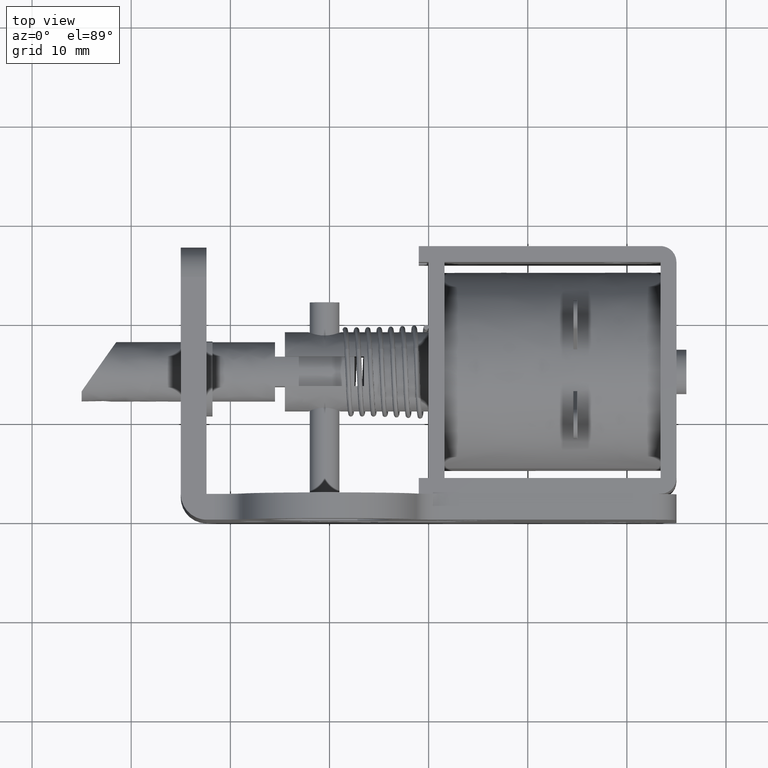
[diagram: clean part render]
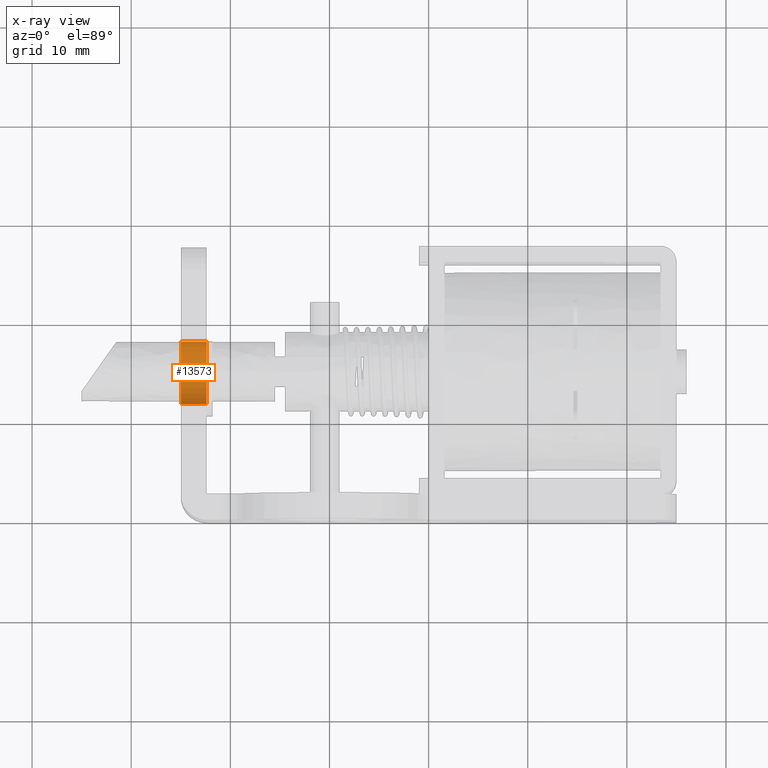
[diagram: x-ray — body ghosted, one internal face saturated and labeled with its STEP entity id]
A machine part, top view, then the same camera in x-ray: the body is ghosted and one INTERNAL B-rep face — a face not visible from any outside direction — is saturated and labeled: STEP entity #13573.
In plain terms, the highlighted face is a freeform B-spline surface patch.
Its self-contained STEP definition (entity closure, byte-faithful):
#13471=CARTESIAN_POINT('',(-12.334992000000080,18.127980008045547,-10.628192160831210));
#13472=CARTESIAN_POINT('',(-12.334992000000080,18.138620988663103,-10.717713604790370));
#13473=CARTESIAN_POINT('',(-12.334992000000080,18.144124615028879,-10.807697100465200));
#13474=CARTESIAN_POINT('',(-12.334992000000081,18.336427514563681,-13.951821715494081));
#13475=CARTESIAN_POINT('',(-12.334992000000080,15.192302899534800,-14.144124615028881));
#13476=CARTESIAN_POINT('',(-12.334992000000081,12.048178284505921,-14.336427514563681));
#13477=CARTESIAN_POINT('',(-12.334992000000080,11.855875384971119,-11.192302899534800));
#13478=CARTESIAN_POINT('',(-15.066617000000020,18.127980008045547,-10.628192160831210));
#13479=CARTESIAN_POINT('',(-15.066617000000020,18.138620988663103,-10.717713604790370));
#13480=CARTESIAN_POINT('',(-15.066617000000020,18.144124615028879,-10.807697100465200));
#13481=CARTESIAN_POINT('',(-15.066617000000019,18.336427514563681,-13.951821715494081));
#13482=CARTESIAN_POINT('',(-15.066617000000020,15.192302899534800,-14.144124615028881));
#13483=CARTESIAN_POINT('',(-15.066617000000019,12.048178284505921,-14.336427514563681));
#13484=CARTESIAN_POINT('',(-15.066617000000020,11.855875384971119,-11.192302899534800));
#13492=(BOUNDED_SURFACE()B_SPLINE_SURFACE(2,1,((#13471,#13478),(#13472,#13479),(#13473,#13480),(#13474,#13481),(#13475,#13482),(#13476,#13483),(#13477,#13484)),.UNSPECIFIED.,.F.,.F.,.U.)B_SPLINE_SURFACE_WITH_KNOTS((3,2,2,3),(2,2),(0.0,0.208763635436040,5.427854521337038,10.646945407238039),(0.0,2.731624999999941),.UNSPECIFIED.)GEOMETRIC_REPRESENTATION_ITEM()RATIONAL_B_SPLINE_SURFACE(((0.977505800795127,0.977505800795127),(0.988284271247462,0.988284271247462),(1.0,1.0),(0.707106781186548,0.707106781186548),(1.0,1.0),(0.707106781186548,0.707106781186548),(1.0,1.0)))REPRESENTATION_ITEM('')SURFACE());
#13493=CARTESIAN_POINT('',(-12.399992000000079,18.127980008034410,-10.628192160737550));
#13494=VERTEX_POINT('',#13493);
#13495=CARTESIAN_POINT('',(-12.399992000000079,15.0,-14.150000000000000));
#13496=VERTEX_POINT('',#13495);
#13497=CARTESIAN_POINT('',(-12.399992000000081,18.127980008034410,-10.628192160737559));
#13498=CARTESIAN_POINT('',(-12.399992000000077,18.149999999999991,-10.813444023001832));
#13499=CARTESIAN_POINT('',(-12.399992000000079,18.149999999999999,-11.0));
#13500=CARTESIAN_POINT('',(-12.399992000000081,18.150000000000002,-14.150000000000004));
#13501=CARTESIAN_POINT('',(-12.399992000000079,15.0,-14.150000000000000));
#13509=(BOUNDED_CURVE()B_SPLINE_CURVE(2,(#13497,#13498,#13499,#13500,#13501),.UNSPECIFIED.,.F.,.U.)B_SPLINE_CURVE_WITH_KNOTS((3,2,3),(0.229562473505524,0.250000000000000,0.500000000000000),.UNSPECIFIED.)CURVE()GEOMETRIC_REPRESENTATION_ITEM()RATIONAL_B_SPLINE_CURVE((0.956026754168049,0.976055948321790,1.0,0.707106781186548,1.0))REPRESENTATION_ITEM(''));
#13510=EDGE_CURVE('',#13494,#13496,#13509,.T.);
#13511=ORIENTED_EDGE('',*,*,#13510,.F.);
#13512=CARTESIAN_POINT('',(-14.999992000000020,18.127980008034410,-10.628192160737550));
#13513=VERTEX_POINT('',#13512);
#13514=CARTESIAN_POINT('',(-12.399992000000079,18.127980008034410,-10.628192160737550));
#13515=CARTESIAN_POINT('',(-14.999992000000020,18.127980008034410,-10.628192160737550));
#13516=QUASI_UNIFORM_CURVE('',1,(#13514,#13515),.UNSPECIFIED.,.F.,.U.);
#13517=EDGE_CURVE('',#13494,#13513,#13516,.T.);
#13518=ORIENTED_EDGE('',*,*,#13517,.T.);
#13519=CARTESIAN_POINT('',(-14.999992000000020,15.0,-14.150000000000000));
#13520=VERTEX_POINT('',#13519);
#13521=CARTESIAN_POINT('',(-14.999992000000020,18.127980008034410,-10.628192160737559));
#13522=CARTESIAN_POINT('',(-14.999992000000022,18.149999999999995,-10.813444023001834));
#13523=CARTESIAN_POINT('',(-14.999992000000020,18.149999999999999,-11.0));
#13524=CARTESIAN_POINT('',(-14.999992000000022,18.150000000000002,-14.150000000000004));
#13525=CARTESIAN_POINT('',(-14.999992000000020,15.0,-14.150000000000000));
#13533=(BOUNDED_CURVE()B_SPLINE_CURVE(2,(#13521,#13522,#13523,#13524,#13525),.UNSPECIFIED.,.F.,.U.)B_SPLINE_CURVE_WITH_KNOTS((3,2,3),(0.229562473505524,0.250000000000000,0.500000000000000),.UNSPECIFIED.)CURVE()GEOMETRIC_REPRESENTATION_ITEM()RATIONAL_B_SPLINE_CURVE((0.956026754168049,0.976055948321790,1.0,0.707106781186548,1.0))REPRESENTATION_ITEM(''));
#13534=EDGE_CURVE('',#13513,#13520,#13533,.T.);
#13535=ORIENTED_EDGE('',*,*,#13534,.T.);
#13536=CARTESIAN_POINT('',(-14.999992000000020,11.855875384973521,-11.192302899574001));
#13537=VERTEX_POINT('',#13536);
#13538=CARTESIAN_POINT('',(-14.999992000000020,15.0,-14.150000000000000));
#13539=CARTESIAN_POINT('',(-14.999992000000018,12.036775889321081,-14.150000000000004));
#13540=CARTESIAN_POINT('',(-14.999992000000026,11.855875384973517,-11.192302899573999));
#13548=(BOUNDED_CURVE()B_SPLINE_CURVE(2,(#13538,#13539,#13540),.UNSPECIFIED.,.F.,.U.)B_SPLINE_CURVE_WITH_KNOTS((3,3),(0.500000000000000,0.739332962237666),.UNSPECIFIED.)CURVE()GEOMETRIC_REPRESENTATION_ITEM()RATIONAL_B_SPLINE_CURVE((1.0,0.719603993288206,0.976072041663981))REPRESENTATION_ITEM(''));
#13549=EDGE_CURVE('',#13520,#13537,#13548,.T.);
#13550=ORIENTED_EDGE('',*,*,#13549,.T.);
#13551=CARTESIAN_POINT('',(-12.399992000000079,11.855875384973521,-11.192302899574001));
#13552=VERTEX_POINT('',#13551);
#13553=CARTESIAN_POINT('',(-12.399992000000079,11.855875384973521,-11.192302899574001));
#13554=CARTESIAN_POINT('',(-14.999992000000020,11.855875384973521,-11.192302899574001));
#13555=QUASI_UNIFORM_CURVE('',1,(#13553,#13554),.UNSPECIFIED.,.F.,.U.);
#13556=EDGE_CURVE('',#13552,#13537,#13555,.T.);
#13557=ORIENTED_EDGE('',*,*,#13556,.F.);
#13558=CARTESIAN_POINT('',(-12.399992000000079,15.0,-14.150000000000000));
#13559=CARTESIAN_POINT('',(-12.399992000000081,12.036775889321081,-14.150000000000004));
#13560=CARTESIAN_POINT('',(-12.399992000000079,11.855875384973517,-11.192302899573999));
#13568=(BOUNDED_CURVE()B_SPLINE_CURVE(2,(#13558,#13559,#13560),.UNSPECIFIED.,.F.,.U.)B_SPLINE_CURVE_WITH_KNOTS((3,3),(0.500000000000000,0.739332962237666),.UNSPECIFIED.)CURVE()GEOMETRIC_REPRESENTATION_ITEM()RATIONAL_B_SPLINE_CURVE((1.0,0.719603993288206,0.976072041663981))REPRESENTATION_ITEM(''));
#13569=EDGE_CURVE('',#13496,#13552,#13568,.T.);
#13570=ORIENTED_EDGE('',*,*,#13569,.F.);
#13571=EDGE_LOOP('',(#13511,#13518,#13535,#13550,#13557,#13570));
#13572=FACE_OUTER_BOUND('',#13571,.T.);
#13573=ADVANCED_FACE('',(#13572),#13492,.F.);